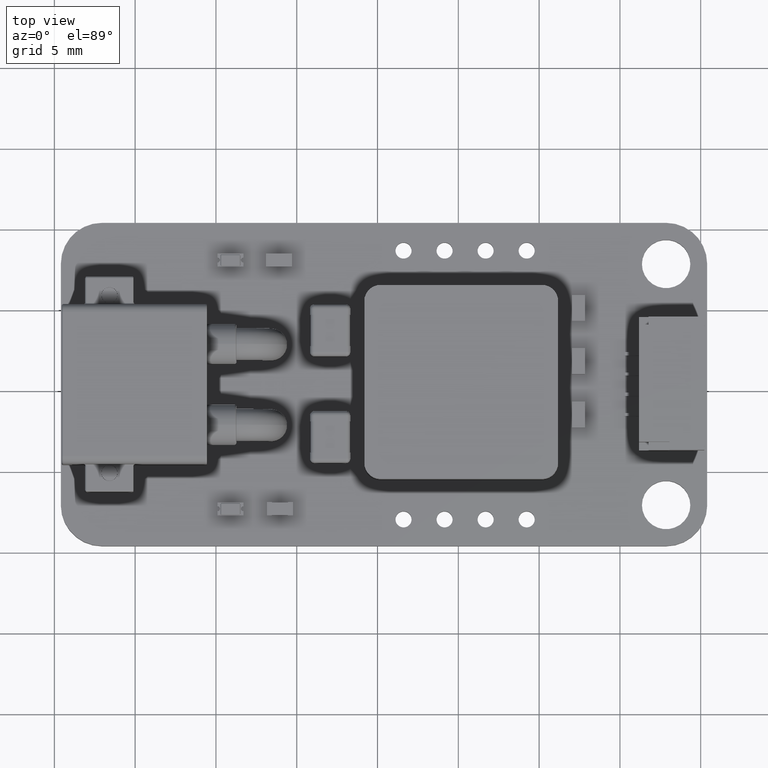
[diagram: clean part render]
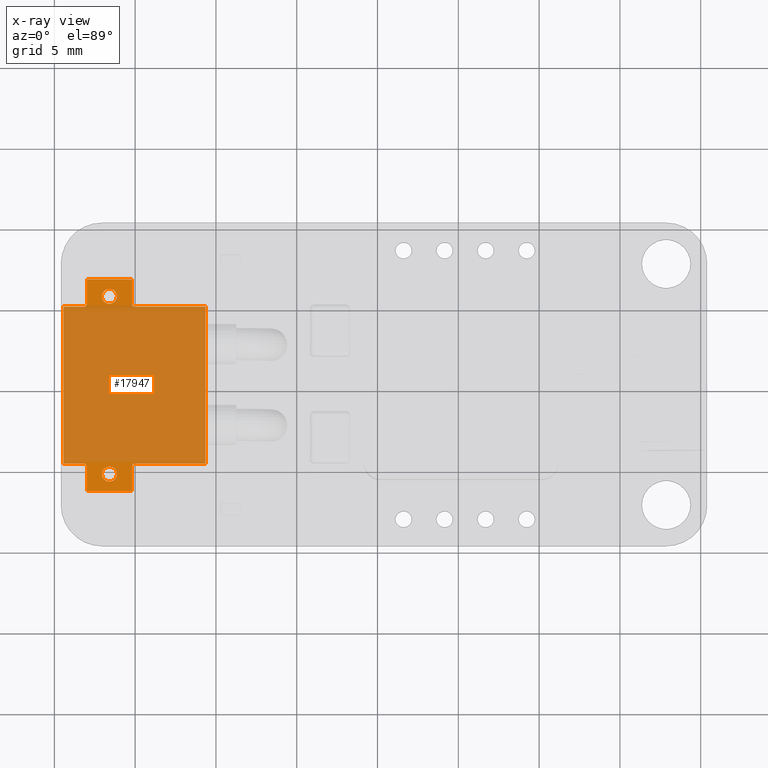
[diagram: x-ray — body ghosted, one internal face saturated and labeled with its STEP entity id]
A machine part, top view, then the same camera in x-ray: the body is ghosted and one INTERNAL B-rep face — a face not visible from any outside direction — is saturated and labeled: STEP entity #17947.
In plain terms, the highlighted planar face has unit normal (0, 0, -1).
Its self-contained STEP definition (entity closure, byte-faithful):
#105 = AXIS2_PLACEMENT_3D ( 'NONE', #19886, #25350, #1936 ) ;
#591 = CARTESIAN_POINT ( 'NONE',  ( 27.94690251194357344, 29.84791529797452725, 0.000000000000000000 ) ) ;
#744 = CARTESIAN_POINT ( 'NONE',  ( 30.00690066732295591, 40.39791565815620089, 0.000000000000000000 ) ) ;
#808 = EDGE_CURVE ( 'NONE', #4488, #1125, #33413, .T. ) ;
#865 = VERTEX_POINT ( 'NONE', #35680 ) ;
#994 = CARTESIAN_POINT ( 'NONE',  ( 25.55690068480758015, 40.29791488009349365, 0.000000000000000000 ) ) ;
#1125 = VERTEX_POINT ( 'NONE', #25492 ) ;
#1377 = DIRECTION ( 'NONE',  ( 0.000000000000000000, 0.000000000000000000, -1.000000000000000000 ) ) ;
#1398 = EDGE_CURVE ( 'NONE', #38036, #8135, #14150, .T. ) ;
#1587 = ORIENTED_EDGE ( 'NONE', *, *, #23177, .T. ) ;
#1598 = DIRECTION ( 'NONE',  ( 1.748455529999999694E-07, -0.9999999999999847899, 0.000000000000000000 ) ) ;
#1810 = FACE_OUTER_BOUND ( 'NONE', #21768, .T. ) ;
#1828 = EDGE_CURVE ( 'NONE', #38036, #24993, #5181, .T. ) ;
#1855 = CARTESIAN_POINT ( 'NONE',  ( 28.40690058864247902, 40.84791537840330733, 0.000000000000000000 ) ) ;
#1936 = DIRECTION ( 'NONE',  ( -0.9999999999999847899, -1.748455547012644793E-07, 0.000000000000000000 ) ) ;
#2147 = DIRECTION ( 'NONE',  ( 1.748455529999999430E-07, -0.9999999999999846789, 0.000000000000000000 ) ) ;
#2166 = VECTOR ( 'NONE', #9720, 1000.000000000000227 ) ;
#2450 = CARTESIAN_POINT ( 'NONE',  ( 29.80690271301592986, 28.69791562318727074, 0.000000000000000000 ) ) ;
#2502 = VERTEX_POINT ( 'NONE', #7254 ) ;
#2543 = ORIENTED_EDGE ( 'NONE', *, *, #24140, .F. ) ;
#2836 = VERTEX_POINT ( 'NONE', #35284 ) ;
#2906 = ORIENTED_EDGE ( 'NONE', *, *, #4483, .T. ) ;
#3156 = CIRCLE ( 'NONE', #17319, 0.1999999999999983735 ) ;
#3386 = DIRECTION ( 'NONE',  ( -0.9999999999999846789, -1.748455547012653793E-07, 0.000000000000000000 ) ) ;
#4067 = DIRECTION ( 'NONE',  ( -0.9999999999999846789, -1.748455547012653793E-07, 0.000000000000000000 ) ) ;
#4313 = PLANE ( 'NONE',  #5947 ) ;
#4483 = EDGE_CURVE ( 'NONE', #33915, #36776, #32163, .T. ) ;
#4488 = VERTEX_POINT ( 'NONE', #17293 ) ;
#4656 = DIRECTION ( 'NONE',  ( 0.9999999999999846789, 1.748455529999999430E-07, 0.000000000000000000 ) ) ;
#4880 = VECTOR ( 'NONE', #30572, 1000.000000000000227 ) ;
#4942 = VECTOR ( 'NONE', #26410, 1000.000000000000227 ) ;
#5181 = CIRCLE ( 'NONE', #27459, 0.1999999999999983735 ) ;
#5947 = AXIS2_PLACEMENT_3D ( 'NONE', #16259, #27910, #1598 ) ;
#5998 = DIRECTION ( 'NONE',  ( -0.9999999999999846789, -1.748455529999999430E-07, 0.000000000000000000 ) ) ;
#6492 = AXIS2_PLACEMENT_3D ( 'NONE', #25879, #32780, #27401 ) ;
#6495 = ORIENTED_EDGE ( 'NONE', *, *, #30014, .T. ) ;
#7144 = CIRCLE ( 'NONE', #6492, 0.4599999999999986322 ) ;
#7254 = CARTESIAN_POINT ( 'NONE',  ( 34.35690239829386172, 30.49791641873450843, 0.000000000000000000 ) ) ;
#7656 = CIRCLE ( 'NONE', #29222, 0.4599999999999986322 ) ;
#7737 = EDGE_CURVE ( 'NONE', #22786, #15879, #7144, .T. ) ;
#7755 = FACE_BOUND ( 'NONE', #10818, .T. ) ;
#7886 = ORIENTED_EDGE ( 'NONE', *, *, #13572, .T. ) ;
#8007 = DIRECTION ( 'NONE',  ( 0.000000000000000000, 0.000000000000000000, 1.000000000000000000 ) ) ;
#8135 = VERTEX_POINT ( 'NONE', #33095 ) ;
#8574 = EDGE_CURVE ( 'NONE', #2502, #2836, #37107, .T. ) ;
#8998 = CIRCLE ( 'NONE', #38058, 0.1999999999999983735 ) ;
#9276 = CARTESIAN_POINT ( 'NONE',  ( 29.80690243326304412, 30.29791562318724729, 0.000000000000000000 ) ) ;
#9314 = EDGE_LOOP ( 'NONE', ( #13141, #6495 ) ) ;
#9637 = CARTESIAN_POINT ( 'NONE',  ( 29.80690269553137384, 28.79791562318726861, 0.000000000000000000 ) ) ;
#9720 = DIRECTION ( 'NONE',  ( 1.748455529999999430E-07, -0.9999999999999846789, 0.000000000000000000 ) ) ;
#9846 = VERTEX_POINT ( 'NONE', #12518 ) ;
#9954 = VERTEX_POINT ( 'NONE', #15155 ) ;
#10117 = VERTEX_POINT ( 'NONE', #23233 ) ;
#10447 = AXIS2_PLACEMENT_3D ( 'NONE', #17369, #29155, #24225 ) ;
#10612 = CARTESIAN_POINT ( 'NONE',  ( 28.40690251194356364, 29.84791537840347786, 0.000000000000000000 ) ) ;
#10818 = EDGE_LOOP ( 'NONE', ( #32968, #22099 ) ) ;
#10842 = LINE ( 'NONE', #16422, #18407 ) ;
#11139 = CARTESIAN_POINT ( 'NONE',  ( 30.00690070229206796, 40.19791565815620515, 0.000000000000000000 ) ) ;
#12518 = CARTESIAN_POINT ( 'NONE',  ( 29.80690040505463045, 41.89791562318706752, 0.000000000000000000 ) ) ;
#12883 = EDGE_CURVE ( 'NONE', #865, #34263, #24063, .T. ) ;
#13107 = CARTESIAN_POINT ( 'NONE',  ( 29.90690239829392993, 30.49791564067179905, 0.000000000000000000 ) ) ;
#13141 = ORIENTED_EDGE ( 'NONE', *, *, #808, .T. ) ;
#13158 = CIRCLE ( 'NONE', #24953, 0.4599999999999986322 ) ;
#13173 = FACE_BOUND ( 'NONE', #9314, .T. ) ;
#13514 = CARTESIAN_POINT ( 'NONE',  ( 30.00690243326304341, 30.29791565815635579, 0.000000000000000000 ) ) ;
#13572 = EDGE_CURVE ( 'NONE', #23084, #9846, #10842, .T. ) ;
#13780 = DIRECTION ( 'NONE',  ( 0.9999999999999846789, 1.748455529999999430E-07, 0.000000000000000000 ) ) ;
#14150 = LINE ( 'NONE', #29385, #16352 ) ;
#14378 = DIRECTION ( 'NONE',  ( 1.748455529999999430E-07, -0.9999999999999846789, 0.000000000000000000 ) ) ;
#14724 = VECTOR ( 'NONE', #35946, 1000.000000000000227 ) ;
#14835 = VECTOR ( 'NONE', #14378, 1000.000000000000227 ) ;
#14954 = DIRECTION ( 'NONE',  ( 0.000000000000000000, 0.000000000000000000, -1.000000000000000000 ) ) ;
#15155 = CARTESIAN_POINT ( 'NONE',  ( 25.55690239829399957, 30.49791488009364571, 0.000000000000000000 ) ) ;
#15373 = EDGE_CURVE ( 'NONE', #36776, #34263, #16651, .T. ) ;
#15820 = CARTESIAN_POINT ( 'NONE',  ( 26.90690070229211273, 40.19791511613499324, 0.000000000000000000 ) ) ;
#15879 = VERTEX_POINT ( 'NONE', #591 ) ;
#16101 = ORIENTED_EDGE ( 'NONE', *, *, #20700, .T. ) ;
#16259 = CARTESIAN_POINT ( 'NONE',  ( 29.95690155029300072, 35.34791564941400566, 0.000000000000000000 ) ) ;
#16352 = VECTOR ( 'NONE', #13780, 1000.000000000000227 ) ;
#16422 = CARTESIAN_POINT ( 'NONE',  ( 29.90690040505462832, 41.89791564067162000, 0.000000000000000000 ) ) ;
#16436 = EDGE_CURVE ( 'NONE', #9954, #17542, #27498, .T. ) ;
#16599 = VECTOR ( 'NONE', #36899, 1000.000000000000227 ) ;
#16651 = LINE ( 'NONE', #25599, #23490 ) ;
#16797 = LINE ( 'NONE', #22253, #24349 ) ;
#17293 = CARTESIAN_POINT ( 'NONE',  ( 28.86690058864247632, 40.84791545883226149, 0.000000000000000000 ) ) ;
#17319 = AXIS2_PLACEMENT_3D ( 'NONE', #26216, #14954, #3386 ) ;
#17369 = CARTESIAN_POINT ( 'NONE',  ( 26.80690243326309030, 30.29791509865058785, 0.000000000000000000 ) ) ;
#17542 = VERTEX_POINT ( 'NONE', #34713 ) ;
#17748 = LINE ( 'NONE', #15820, #14724 ) ;
#17947 = ADVANCED_FACE ( 'NONE', ( #1810, #13173, #7755 ), #4313, .T. ) ;
#17982 = ORIENTED_EDGE ( 'NONE', *, *, #24088, .T. ) ;
#18407 = VECTOR ( 'NONE', #4656, 1000.000000000000227 ) ;
#18705 = CARTESIAN_POINT ( 'NONE',  ( 27.00690269553141576, 28.79791513361972122, 0.000000000000000000 ) ) ;
#19122 = ORIENTED_EDGE ( 'NONE', *, *, #34269, .T. ) ;
#19886 = CARTESIAN_POINT ( 'NONE',  ( 28.40690058864247902, 40.84791537840330733, 0.000000000000000000 ) ) ;
#20700 = EDGE_CURVE ( 'NONE', #8135, #2502, #30177, .T. ) ;
#21091 = CARTESIAN_POINT ( 'NONE',  ( 25.45690239829399815, 30.49791486260908968, 0.000000000000000000 ) ) ;
#21210 = DIRECTION ( 'NONE',  ( -0.9999999999999846789, -1.748455547012653793E-07, 0.000000000000000000 ) ) ;
#21490 = ORIENTED_EDGE ( 'NONE', *, *, #12883, .F. ) ;
#21618 = ORIENTED_EDGE ( 'NONE', *, *, #8574, .T. ) ;
#21768 = EDGE_LOOP ( 'NONE', ( #35400, #16101, #21618, #38250, #17982, #2906, #31706, #21490, #25546, #29024, #1587, #2543, #19122, #7886, #35138, #29737 ) ) ;
#22099 = ORIENTED_EDGE ( 'NONE', *, *, #37761, .T. ) ;
#22253 = CARTESIAN_POINT ( 'NONE',  ( 29.80690068480751265, 40.29791562318709452, 0.000000000000000000 ) ) ;
#22404 = DIRECTION ( 'NONE',  ( -0.9999999999999847899, -1.748455547012644793E-07, 0.000000000000000000 ) ) ;
#22508 = DIRECTION ( 'NONE',  ( -0.9999999999999847899, -1.748455547012644793E-07, 0.000000000000000000 ) ) ;
#22786 = VERTEX_POINT ( 'NONE', #26007 ) ;
#23084 = VERTEX_POINT ( 'NONE', #23624 ) ;
#23177 = EDGE_CURVE ( 'NONE', #17542, #30564, #17748, .T. ) ;
#23233 = CARTESIAN_POINT ( 'NONE',  ( 27.00690066732300210, 40.39791513361954856, 0.000000000000000000 ) ) ;
#23321 = CARTESIAN_POINT ( 'NONE',  ( 29.95690269553137242, 28.79791564941410442, 0.000000000000000000 ) ) ;
#23490 = VECTOR ( 'NONE', #28477, 1000.000000000000227 ) ;
#23624 = CARTESIAN_POINT ( 'NONE',  ( 27.00690040505467593, 41.89791513361952013, 0.000000000000000000 ) ) ;
#24063 = CIRCLE ( 'NONE', #10447, 0.1999999999999983735 ) ;
#24088 = EDGE_CURVE ( 'NONE', #25023, #33915, #28877, .T. ) ;
#24140 = EDGE_CURVE ( 'NONE', #10117, #30564, #3156, .T. ) ;
#24225 = DIRECTION ( 'NONE',  ( -0.9999999999999846789, -1.748455547012653793E-07, 0.000000000000000000 ) ) ;
#24349 = VECTOR ( 'NONE', #2147, 1000.000000000000227 ) ;
#24953 = AXIS2_PLACEMENT_3D ( 'NONE', #1855, #8007, #22508 ) ;
#24993 = VERTEX_POINT ( 'NONE', #33606 ) ;
#25023 = VERTEX_POINT ( 'NONE', #9276 ) ;
#25350 = DIRECTION ( 'NONE',  ( 0.000000000000000000, 0.000000000000000000, 1.000000000000000000 ) ) ;
#25492 = CARTESIAN_POINT ( 'NONE',  ( 27.94690058864248883, 40.84791529797436027, 0.000000000000000000 ) ) ;
#25546 = ORIENTED_EDGE ( 'NONE', *, *, #31073, .T. ) ;
#25599 = CARTESIAN_POINT ( 'NONE',  ( 27.00690241577853357, 30.39791513361969777, 0.000000000000000000 ) ) ;
#25879 = CARTESIAN_POINT ( 'NONE',  ( 28.40690251194356364, 29.84791537840347786, 0.000000000000000000 ) ) ;
#26007 = CARTESIAN_POINT ( 'NONE',  ( 28.86690251194355739, 29.84791545883243202, 0.000000000000000000 ) ) ;
#26216 = CARTESIAN_POINT ( 'NONE',  ( 26.80690066732300281, 40.39791509865043651, 0.000000000000000000 ) ) ;
#26235 = CARTESIAN_POINT ( 'NONE',  ( 26.80690070229211486, 40.19791509865043366, 0.000000000000000000 ) ) ;
#26410 = DIRECTION ( 'NONE',  ( -0.9999999999999846789, -1.748455529999999430E-07, 0.000000000000000000 ) ) ;
#27043 = DIRECTION ( 'NONE',  ( 0.000000000000000000, 0.000000000000000000, -1.000000000000000000 ) ) ;
#27401 = DIRECTION ( 'NONE',  ( -0.9999999999999847899, -1.748455547012644793E-07, 0.000000000000000000 ) ) ;
#27459 = AXIS2_PLACEMENT_3D ( 'NONE', #744, #27043, #21210 ) ;
#27498 = LINE ( 'NONE', #994, #33331 ) ;
#27910 = DIRECTION ( 'NONE',  ( 0.000000000000000000, 0.000000000000000000, -1.000000000000000000 ) ) ;
#28094 = CARTESIAN_POINT ( 'NONE',  ( 27.00690243326308959, 30.29791513361969990, 0.000000000000000000 ) ) ;
#28477 = DIRECTION ( 'NONE',  ( -1.748455529999999430E-07, 0.9999999999999846789, 0.000000000000000000 ) ) ;
#28877 = LINE ( 'NONE', #2450, #14835 ) ;
#29024 = ORIENTED_EDGE ( 'NONE', *, *, #16436, .T. ) ;
#29155 = DIRECTION ( 'NONE',  ( 0.000000000000000000, 0.000000000000000000, -1.000000000000000000 ) ) ;
#29222 = AXIS2_PLACEMENT_3D ( 'NONE', #10612, #33985, #22404 ) ;
#29385 = CARTESIAN_POINT ( 'NONE',  ( 34.45690070229200330, 40.19791643621891808, 0.000000000000000000 ) ) ;
#29737 = ORIENTED_EDGE ( 'NONE', *, *, #1828, .F. ) ;
#29846 = VECTOR ( 'NONE', #5998, 1000.000000000000227 ) ;
#30014 = EDGE_CURVE ( 'NONE', #1125, #4488, #13158, .T. ) ;
#30177 = LINE ( 'NONE', #36186, #2166 ) ;
#30564 = VERTEX_POINT ( 'NONE', #26235 ) ;
#30572 = DIRECTION ( 'NONE',  ( -1.748455529999999430E-07, 0.9999999999999846789, 0.000000000000000000 ) ) ;
#30783 = LINE ( 'NONE', #33896, #4880 ) ;
#31073 = EDGE_CURVE ( 'NONE', #865, #9954, #35186, .T. ) ;
#31706 = ORIENTED_EDGE ( 'NONE', *, *, #15373, .T. ) ;
#32163 = LINE ( 'NONE', #23321, #4942 ) ;
#32201 = EDGE_CURVE ( 'NONE', #25023, #2836, #8998, .T. ) ;
#32780 = DIRECTION ( 'NONE',  ( 0.000000000000000000, 0.000000000000000000, 1.000000000000000000 ) ) ;
#32968 = ORIENTED_EDGE ( 'NONE', *, *, #7737, .T. ) ;
#33095 = CARTESIAN_POINT ( 'NONE',  ( 34.35690070229199478, 40.19791641873435850, 0.000000000000000000 ) ) ;
#33331 = VECTOR ( 'NONE', #36379, 1000.000000000000227 ) ;
#33413 = CIRCLE ( 'NONE', #105, 0.4599999999999986322 ) ;
#33606 = CARTESIAN_POINT ( 'NONE',  ( 29.80690066732295662, 40.39791562318708884, 0.000000000000000000 ) ) ;
#33896 = CARTESIAN_POINT ( 'NONE',  ( 27.00690038757011990, 41.99791513361952155, 0.000000000000000000 ) ) ;
#33915 = VERTEX_POINT ( 'NONE', #9637 ) ;
#33985 = DIRECTION ( 'NONE',  ( 0.000000000000000000, 0.000000000000000000, 1.000000000000000000 ) ) ;
#34263 = VERTEX_POINT ( 'NONE', #28094 ) ;
#34269 = EDGE_CURVE ( 'NONE', #10117, #23084, #30783, .T. ) ;
#34713 = CARTESIAN_POINT ( 'NONE',  ( 25.55690070229213617, 40.19791488009349223, 0.000000000000000000 ) ) ;
#35138 = ORIENTED_EDGE ( 'NONE', *, *, #37391, .T. ) ;
#35186 = LINE ( 'NONE', #21091, #29846 ) ;
#35284 = CARTESIAN_POINT ( 'NONE',  ( 30.00690239829393136, 30.49791565815635508, 0.000000000000000000 ) ) ;
#35400 = ORIENTED_EDGE ( 'NONE', *, *, #1398, .T. ) ;
#35680 = CARTESIAN_POINT ( 'NONE',  ( 26.80690239829398180, 30.49791509865058359, 0.000000000000000000 ) ) ;
#35946 = DIRECTION ( 'NONE',  ( 0.9999999999999846789, 1.748455529999999430E-07, 0.000000000000000000 ) ) ;
#36186 = CARTESIAN_POINT ( 'NONE',  ( 34.35690241577842130, 30.39791641873451056, 0.000000000000000000 ) ) ;
#36379 = DIRECTION ( 'NONE',  ( -1.748455529999999430E-07, 0.9999999999999846789, 0.000000000000000000 ) ) ;
#36776 = VERTEX_POINT ( 'NONE', #18705 ) ;
#36899 = DIRECTION ( 'NONE',  ( -0.9999999999999846789, -1.748455529999999430E-07, 0.000000000000000000 ) ) ;
#37107 = LINE ( 'NONE', #13107, #16599 ) ;
#37391 = EDGE_CURVE ( 'NONE', #9846, #24993, #16797, .T. ) ;
#37761 = EDGE_CURVE ( 'NONE', #15879, #22786, #7656, .T. ) ;
#38036 = VERTEX_POINT ( 'NONE', #11139 ) ;
#38058 = AXIS2_PLACEMENT_3D ( 'NONE', #13514, #1377, #4067 ) ;
#38250 = ORIENTED_EDGE ( 'NONE', *, *, #32201, .F. ) ;